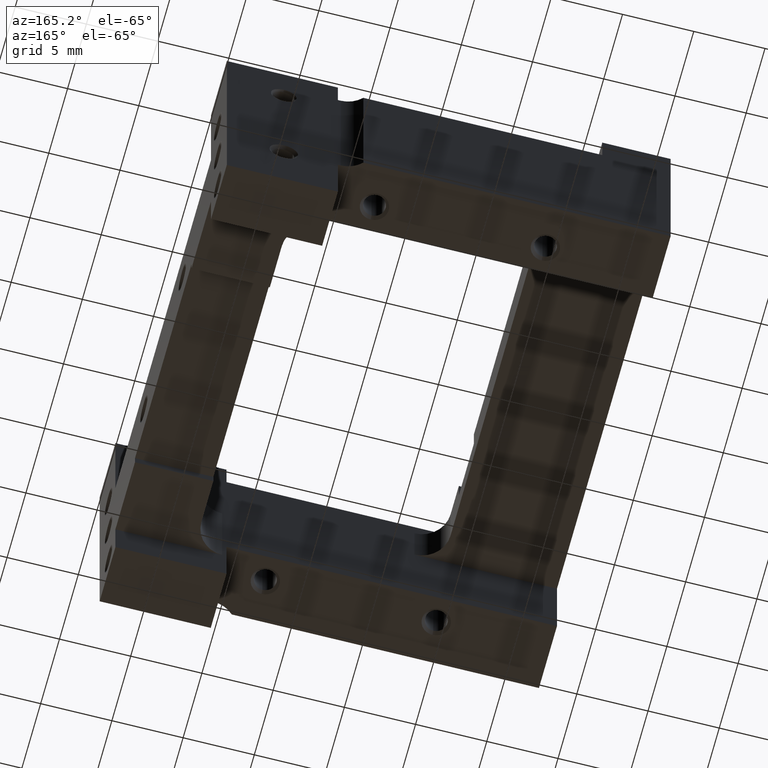
[diagram: clean part render]
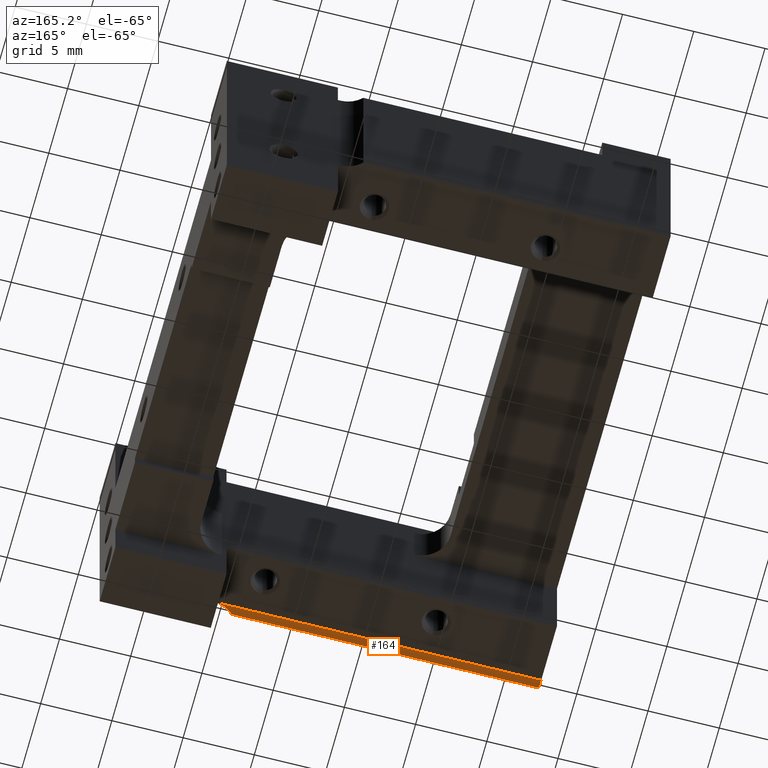
[diagram: same view with one face highlighted and labeled with its STEP entity id]
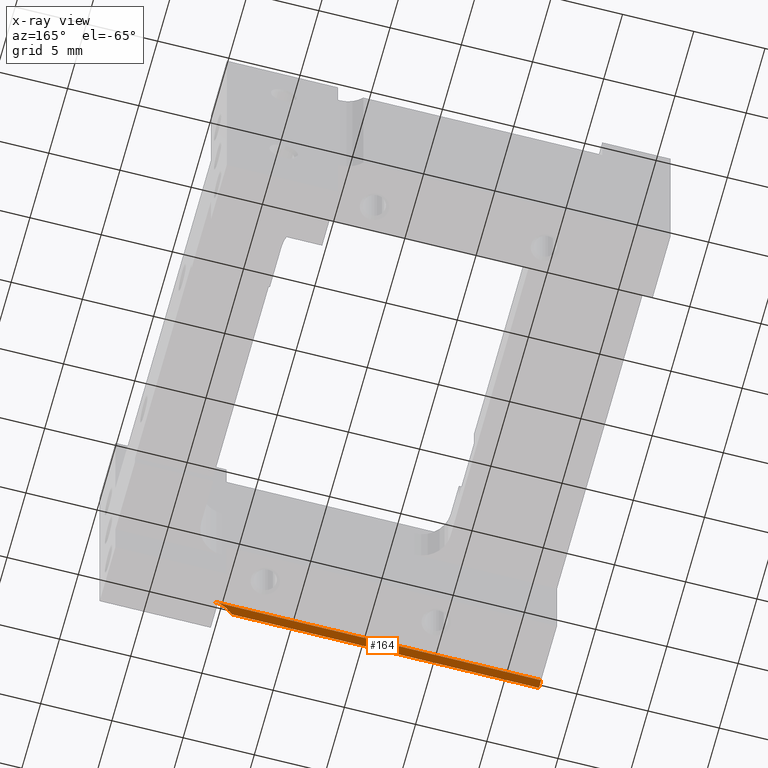
[diagram: x-ray of the same camera — body ghosted, the highlighted face saturated]
A machine part, auxiliary view. The second image highlights one B-rep face of the part: STEP entity #164.
The next image is the same camera in x-ray: the body ghosted, the highlighted face saturated — about 0% of this face is hidden behind the body in this view.
In plain terms, the highlighted planar face has unit normal (0, 0, -1).
Its self-contained STEP definition (entity closure, byte-faithful):
#164=ADVANCED_FACE('',(#358),#1706,.T.);
#358=FACE_OUTER_BOUND('',#552,.F.);
#552=EDGE_LOOP('',(#778,#779,#780,#781));
#778=ORIENTED_EDGE('',*,*,#2379,.T.);
#779=ORIENTED_EDGE('',*,*,#2375,.F.);
#780=ORIENTED_EDGE('',*,*,#2372,.T.);
#781=ORIENTED_EDGE('',*,*,#2383,.T.);
#1706=PLANE('',#3502);
#1805=LINE('',#5077,#2075);
#1808=LINE('',#5080,#2078);
#1812=LINE('',#5084,#2082);
#2075=VECTOR('',#3766,21.5717143142913);
#2078=VECTOR('',#3769,0.599999999999994);
#2082=VECTOR('',#3773,23.);
#2372=EDGE_CURVE('',#3233,#3232,#1805,.T.);
#2375=EDGE_CURVE('',#3233,#3227,#1808,.T.);
#2379=EDGE_CURVE('',#3222,#3227,#1812,.T.);
#2383=EDGE_CURVE('',#3232,#3222,#2826,.T.);
#2826=CIRCLE('',#3335,2.);
#3222=VERTEX_POINT('',#4983);
#3227=VERTEX_POINT('',#4988);
#3232=VERTEX_POINT('',#4993);
#3233=VERTEX_POINT('',#4994);
#3335=AXIS2_PLACEMENT_3D('',#5088,#3777,#3778);
#3502=AXIS2_PLACEMENT_3D('',#5504,#4360,#4361);
#3766=DIRECTION('',(1.,0.,0.));
#3769=DIRECTION('',(0.,1.,0.));
#3773=DIRECTION('',(-1.,0.,0.));
#3777=DIRECTION('',(0.,0.,-1.));
#3778=DIRECTION('',(-0.714142842854339,0.699999999999945,0.));
#4360=DIRECTION('',(0.,0.,-1.));
#4361=DIRECTION('',(0.,1.,0.));
#4983=CARTESIAN_POINT('',(-10.0000000000126,-76.8999999999998,-105.399999873198));
#4988=CARTESIAN_POINT('',(-33.0000000000126,-76.8999999999998,-105.399999825976));
#4993=CARTESIAN_POINT('',(-11.4282856857213,-77.4999999999998,-105.400000014864));
#4994=CARTESIAN_POINT('',(-33.0000000000126,-77.4999999999998,-105.400000014864));
#5077=CARTESIAN_POINT('',(-33.0000000000126,-77.4999999999998,-105.400000014864));
#5080=CARTESIAN_POINT('',(-33.0000000000126,-77.4999999999998,-105.400000014864));
#5084=CARTESIAN_POINT('',(-10.0000000000126,-76.8999999999998,-105.399999731532));
#5088=CARTESIAN_POINT('',(-10.0000000000126,-78.8999999999997,-105.400000014864));
#5504=CARTESIAN_POINT('',(-33.3100000000126,-77.8099999999998,-105.400000014864));